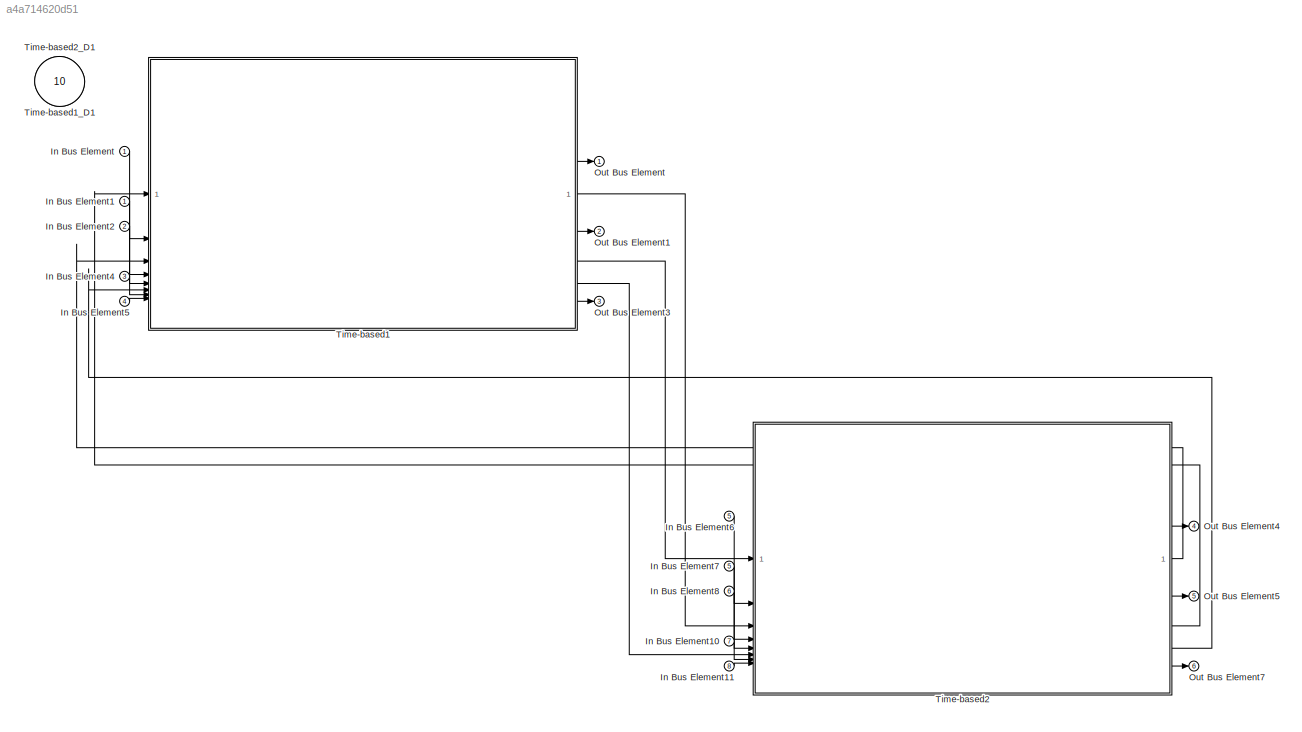
MODEL slx_a4a714620d51
KIND model
CONFIG AbsTol = auto
CONFIG EnableMultiTasking = off
CONFIG FixedStep = auto
CONFIG MaxStep = auto
CONFIG MinStep = auto
CONFIG RelTol = 1e-3
CONFIG SampleTimeConstraint = Unconstrained
CONFIG SolverName = FixedStepDiscrete
CONFIG StartTime = 0.0
CONFIG StopTime = 10.0
WORKSPACE source: mxarray member
WORKSPACE user1_ACK: Simulink.Bus (value not decoded)
WORKSPACE user1_dequeue: Simulink.Bus (value not decoded)
WORKSPACE user1_in_data: Simulink.Bus (value not decoded)
WORKSPACE user1_out_data: Simulink.Bus (value not decoded)
WORKSPACE user1_receive_ready: Simulink.Bus (value not decoded)
WORKSPACE user1_reset_receiver: Simulink.Bus (value not decoded)
WORKSPACE user1_reset_sender: Simulink.Bus (value not decoded)
WORKSPACE user2_ACK: Simulink.Bus (value not decoded)
WORKSPACE user2_dequeue: Simulink.Bus (value not decoded)
WORKSPACE user2_in_data: Simulink.Bus (value not decoded)
WORKSPACE user2_out_data: Simulink.Bus (value not decoded)
WORKSPACE user2_receive_ready: Simulink.Bus (value not decoded)
WORKSPACE user2_reset_receiver: Simulink.Bus (value not decoded)
WORKSPACE user2_reset_sender: Simulink.Bus (value not decoded)
BLOCK [Inport] In Bus Element
BLOCK [Inport] In Bus Element1
BLOCK [Inport] In Bus Element10
  Port = 7
BLOCK [Inport] In Bus Element11
  Port = 8
BLOCK [Inport] In Bus Element2
  Port = 2
BLOCK [Inport] In Bus Element4
  Port = 3
BLOCK [Inport] In Bus Element5
  Port = 4
BLOCK [Inport] In Bus Element6
  Port = 5
BLOCK [Inport] In Bus Element7
  Port = 5
BLOCK [Inport] In Bus Element8
  Port = 6
BLOCK [Outport] Out Bus Element
BLOCK [Outport] Out Bus Element1
  Port = 2
BLOCK [Outport] Out Bus Element3
  Port = 3
BLOCK [Outport] Out Bus Element4
  Port = 4
BLOCK [Outport] Out Bus Element5
  Port = 5
BLOCK [Outport] Out Bus Element7
  Port = 6
BLOCK [ModelReference] Time-based1
  CachedPortDiscreteRates = [0.01]
  ModelEventPortInfo = P:D1[0.01][0][0]
  ModelNameDialog = User2.slx
  ModelReferenceVersion = 1.22
  PortSchema = {"entries":[{"content":{"headerSize":38,"margin":15,"minimumSpacing":25,"sides":[{"content":{"connectorIds":["In1","In2","In3","In4","In5","In6","In7","In8"]},"type":"ConnectorPlacement.EquallySpacedRectSide","uuid":"8f23cae4-f766-42d5-b267-e53acde670f4"},{"content":{"connectorIds":["Out1","Out2","Out3","Out4","Out5","Out6"],"side":"RIGHT"},"type":"ConnectorPlacement.EquallySpacedRectSide","uuid":...<+496ch>
  ScheduleRates = on
BLOCK [Inport] Time-based1_D1
  OutputFunctionCall = on
  Port = 9
BLOCK [ModelReference] Time-based2
  CachedPortDiscreteRates = [0.01]
  ModelEventPortInfo = P:D1[0.01][0][0]
  ModelNameDialog = User2.slx
  ModelReferenceVersion = 1.22
  PortSchema = {"entries":[{"content":{"headerSize":38,"margin":15,"minimumSpacing":25,"sides":[{"content":{"connectorIds":["In1","In2","In3","In4","In5","In6","In7","In8"]},"type":"ConnectorPlacement.EquallySpacedRectSide","uuid":"8f23cae4-f766-42d5-b267-e53acde670f4"},{"content":{"connectorIds":["Out1","Out2","Out3","Out4","Out5","Out6"],"side":"RIGHT"},"type":"ConnectorPlacement.EquallySpacedRectSide","uuid":...<+496ch>
  ScheduleRates = on
BLOCK [Inport] Time-based2_D1
  OutputFunctionCall = on
  Port = 10
LINE In Bus Element10:1 -> Time-based2:7
LINE In Bus Element11:1 -> Time-based2:8
LINE In Bus Element1:1 -> Time-based1:4
LINE In Bus Element2:1 -> Time-based1:5
LINE In Bus Element4:1 -> Time-based1:7
LINE In Bus Element5:1 -> Time-based1:8
LINE In Bus Element6:1 -> Time-based2:2
LINE In Bus Element7:1 -> Time-based2:4
LINE In Bus Element8:1 -> Time-based2:5
LINE In Bus Element:1 -> Time-based1:2
LINE Time-based1:1 -> Time-based2:3
LINE Time-based1:2 -> Out Bus Element:1
LINE Time-based1:3 -> Time-based2:1
LINE Time-based1:4 -> Out Bus Element1:1
LINE Time-based1:5 -> Time-based2:6
LINE Time-based1:6 -> Out Bus Element3:1
LINE Time-based2:1 -> Time-based1:3
LINE Time-based2:2 -> Out Bus Element4:1
LINE Time-based2:3 -> Time-based1:1
LINE Time-based2:4 -> Out Bus Element5:1
LINE Time-based2:5 -> Time-based1:6
LINE Time-based2:6 -> Out Bus Element7:1
